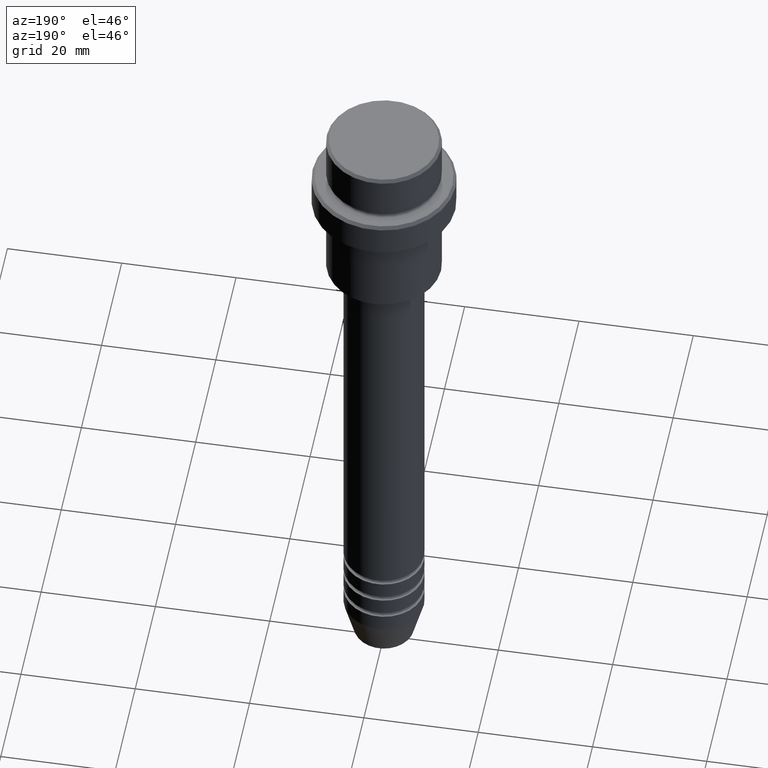
[diagram: clean part render]
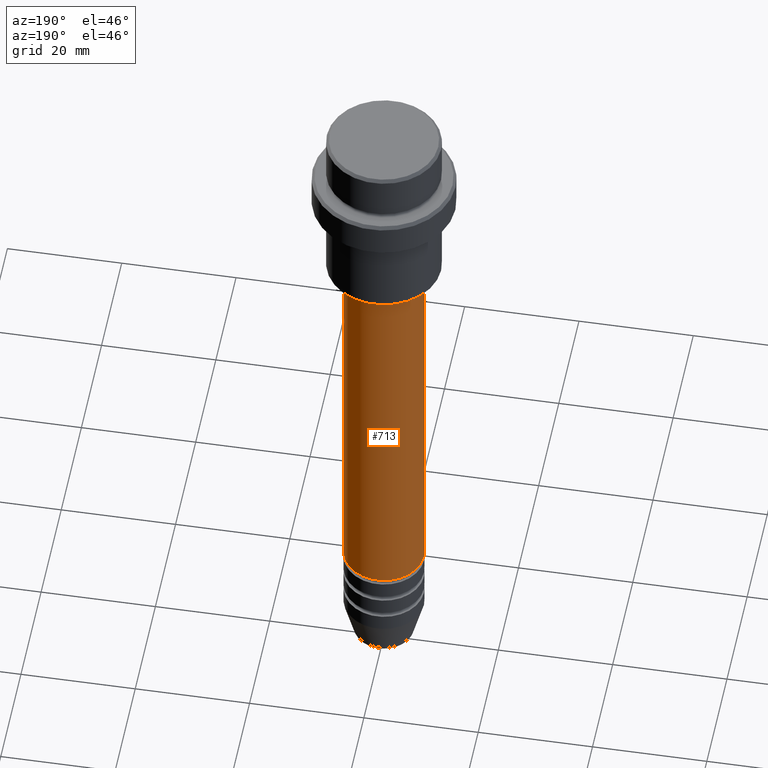
[diagram: same view with one face highlighted and labeled with its STEP entity id]
A machine part, auxiliary view. The second image highlights one B-rep face of the part: STEP entity #713.
In plain terms, the highlighted cylindrical surface (partial cylindrical patch) has radius 7 mm, axis along (-0, -0, 1).
Its self-contained STEP definition (entity closure, byte-faithful):
#26 = EDGE_CURVE ( 'NONE', #90, #467, #1234, .T. ) ;
#90 = VERTEX_POINT ( 'NONE', #413 ) ;
#127 = VECTOR ( 'NONE', #603, 1000.000000000000000 ) ;
#152 = CARTESIAN_POINT ( 'NONE',  ( -7.000000000000000000, 8.572527594031473190E-16, -32.00000000000000000 ) ) ;
#178 = CARTESIAN_POINT ( 'NONE',  ( 0.000000000000000000, 0.000000000000000000, -32.00000000000000000 ) ) ;
#268 = CARTESIAN_POINT ( 'NONE',  ( 0.000000000000000000, 0.000000000000000000, -101.9999999999998721 ) ) ;
#288 = DIRECTION ( 'NONE',  ( 1.000000000000000000, 0.000000000000000000, 0.000000000000000000 ) ) ;
#374 = ORIENTED_EDGE ( 'NONE', *, *, #648, .F. ) ;
#378 = DIRECTION ( 'NONE',  ( -0.000000000000000000, -0.000000000000000000, 1.000000000000000000 ) ) ;
#397 = CYLINDRICAL_SURFACE ( 'NONE', #441, 7.000000000000000000 ) ;
#413 = CARTESIAN_POINT ( 'NONE',  ( -7.000000000000000000, 8.572527594031473190E-16, -101.9999999999998721 ) ) ;
#441 = AXIS2_PLACEMENT_3D ( 'NONE', #919, #508, #288 ) ;
#461 = VERTEX_POINT ( 'NONE', #1318 ) ;
#467 = VERTEX_POINT ( 'NONE', #152 ) ;
#497 = FACE_OUTER_BOUND ( 'NONE', #1197, .T. ) ;
#508 = DIRECTION ( 'NONE',  ( -0.000000000000000000, -0.000000000000000000, 1.000000000000000000 ) ) ;
#560 = CARTESIAN_POINT ( 'NONE',  ( -7.000000000000000000, 8.572527594031473190E-16, 0.000000000000000000 ) ) ;
#603 = DIRECTION ( 'NONE',  ( -0.000000000000000000, -0.000000000000000000, 1.000000000000000000 ) ) ;
#604 = AXIS2_PLACEMENT_3D ( 'NONE', #178, #1137, #709 ) ;
#617 = EDGE_CURVE ( 'NONE', #1040, #467, #1124, .T. ) ;
#648 = EDGE_CURVE ( 'NONE', #461, #1040, #1255, .T. ) ;
#709 = DIRECTION ( 'NONE',  ( 1.000000000000000000, 0.000000000000000000, 0.000000000000000000 ) ) ;
#713 = ADVANCED_FACE ( 'NONE', ( #497 ), #397, .T. ) ;
#731 = EDGE_CURVE ( 'NONE', #461, #90, #1335, .T. ) ;
#780 = CARTESIAN_POINT ( 'NONE',  ( 7.000000000000000000, 0.000000000000000000, -32.00000000000000000 ) ) ;
#804 = DIRECTION ( 'NONE',  ( 1.000000000000000000, 0.000000000000000000, 0.000000000000000000 ) ) ;
#900 = ORIENTED_EDGE ( 'NONE', *, *, #26, .T. ) ;
#919 = CARTESIAN_POINT ( 'NONE',  ( 0.000000000000000000, 0.000000000000000000, 0.000000000000000000 ) ) ;
#937 = CARTESIAN_POINT ( 'NONE',  ( 7.000000000000000000, 0.000000000000000000, 0.000000000000000000 ) ) ;
#964 = ORIENTED_EDGE ( 'NONE', *, *, #617, .F. ) ;
#1040 = VERTEX_POINT ( 'NONE', #780 ) ;
#1124 = CIRCLE ( 'NONE', #604, 7.000000000000000000 ) ;
#1137 = DIRECTION ( 'NONE',  ( -0.000000000000000000, -0.000000000000000000, 1.000000000000000000 ) ) ;
#1197 = EDGE_LOOP ( 'NONE', ( #1306, #900, #964, #374 ) ) ;
#1234 = LINE ( 'NONE', #560, #1261 ) ;
#1250 = DIRECTION ( 'NONE',  ( -0.000000000000000000, -0.000000000000000000, 1.000000000000000000 ) ) ;
#1255 = LINE ( 'NONE', #937, #127 ) ;
#1261 = VECTOR ( 'NONE', #1250, 1000.000000000000000 ) ;
#1306 = ORIENTED_EDGE ( 'NONE', *, *, #731, .T. ) ;
#1307 = AXIS2_PLACEMENT_3D ( 'NONE', #268, #378, #804 ) ;
#1318 = CARTESIAN_POINT ( 'NONE',  ( 7.000000000000000000, 0.000000000000000000, -101.9999999999998721 ) ) ;
#1335 = CIRCLE ( 'NONE', #1307, 7.000000000000000000 ) ;